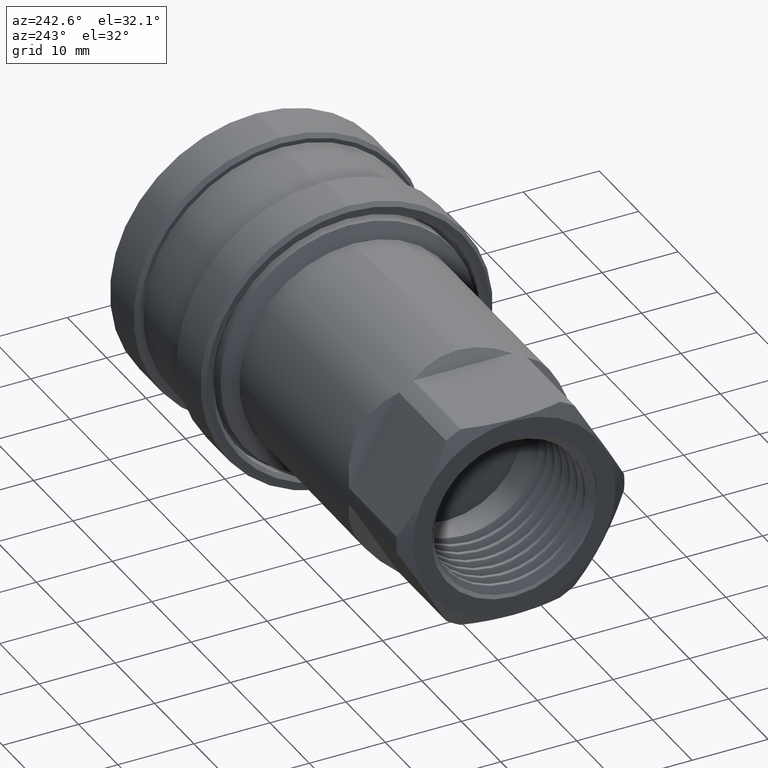
[diagram: clean part render]
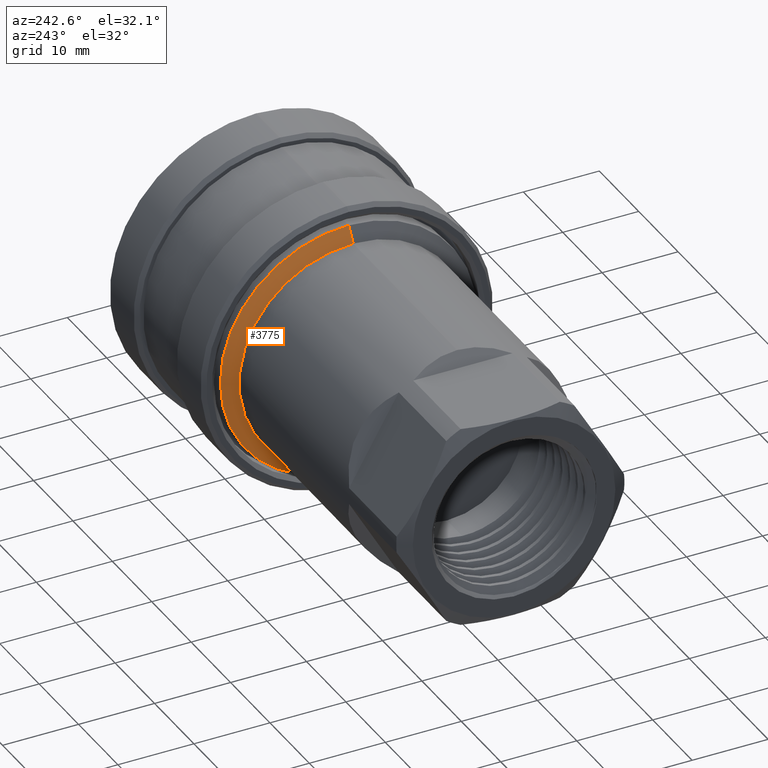
[diagram: same view with one face highlighted and labeled with its STEP entity id]
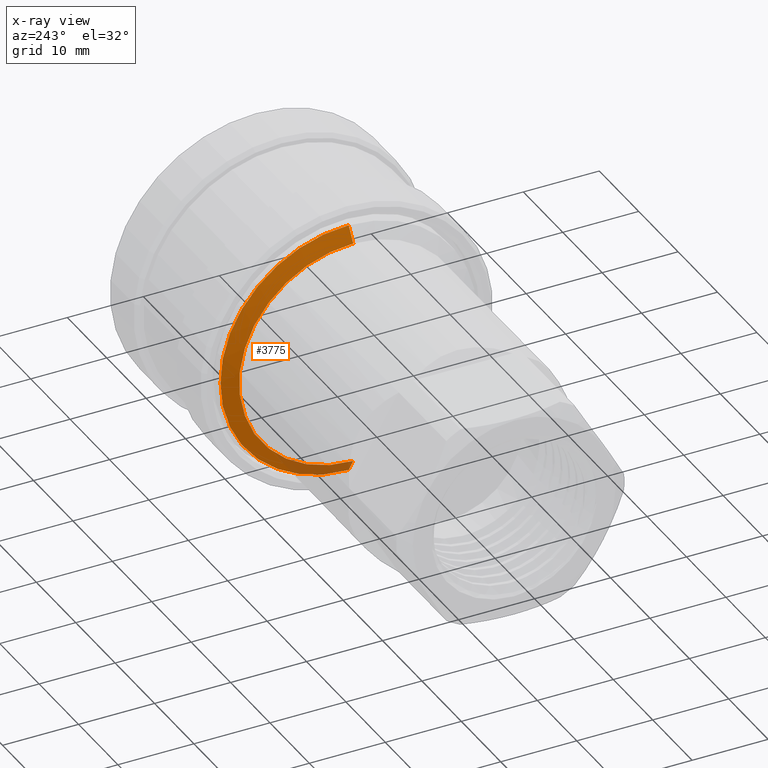
[diagram: x-ray of the same camera — body ghosted, the highlighted face saturated]
A machine part, auxiliary view. The second image highlights one B-rep face of the part: STEP entity #3775.
The next image is the same camera in x-ray: the body ghosted, the highlighted face saturated — about 11% of this face is hidden behind the body in this view.
In plain terms, the highlighted conical surface has half-angle 58.45 deg.
Its self-contained STEP definition (entity closure, byte-faithful):
#63 = DIRECTION ( 'NONE',  ( 0.000000000000000000, 0.000000000000000000, 1.000000000000000000 ) ) ;
#93 = EDGE_CURVE ( 'NONE', #1594, #4481, #3083, .T. ) ;
#112 = CARTESIAN_POINT ( 'NONE',  ( 201849.9763805929106, 201918.9340169888164, -16.87557297991081739 ) ) ;
#223 = CIRCLE ( 'NONE', #4432, 14.99469065859668504 ) ;
#337 = VECTOR ( 'NONE', #3525, 1000.000000000000114 ) ;
#361 = CARTESIAN_POINT ( 'NONE',  ( 201848.8215014559100, 201918.9340169888164, 14.99469065909630672 ) ) ;
#777 = VECTOR ( 'NONE', #4389, 1000.000000000000000 ) ;
#922 = ORIENTED_EDGE ( 'NONE', *, *, #2974, .T. ) ;
#956 = ORIENTED_EDGE ( 'NONE', *, *, #4944, .T. ) ;
#1091 = DIRECTION ( 'NONE',  ( 0.000000000000000000, 0.000000000000000000, -1.000000000000000000 ) ) ;
#1205 = DIRECTION ( 'NONE',  ( 0.000000000000000000, 0.000000000000000000, 1.000000000000000000 ) ) ;
#1594 = VERTEX_POINT ( 'NONE', #1759 ) ;
#1759 = CARTESIAN_POINT ( 'NONE',  ( 201848.8215014559100, 201918.9340169888164, -14.99469065809707580 ) ) ;
#2050 = CARTESIAN_POINT ( 'NONE',  ( 201849.9763805929106, 201918.9340169888164, 4.996178036773544553E-10 ) ) ;
#2157 = CARTESIAN_POINT ( 'NONE',  ( 201849.9763805929106, 201918.9340169888164, 16.87557298091005364 ) ) ;
#2230 = VERTEX_POINT ( 'NONE', #2157 ) ;
#2358 = EDGE_LOOP ( 'NONE', ( #4453, #956, #922, #2587 ) ) ;
#2587 = ORIENTED_EDGE ( 'NONE', *, *, #93, .F. ) ;
#2974 = EDGE_CURVE ( 'NONE', #2230, #4481, #4413, .T. ) ;
#3083 = LINE ( 'NONE', #112, #337 ) ;
#3417 = AXIS2_PLACEMENT_3D ( 'NONE', #2050, #5393, #1091 ) ;
#3420 = LINE ( 'NONE', #3876, #777 ) ;
#3525 = DIRECTION ( 'NONE',  ( 0.5232470412494306666, -1.035051254387629463E-15, -0.8521810452149921611 ) ) ;
#3688 = CONICAL_SURFACE ( 'NONE', #3417, 16.87557298041043552, 1.020139542058112747 ) ;
#3712 = FACE_OUTER_BOUND ( 'NONE', #2358, .T. ) ;
#3775 = ADVANCED_FACE ( 'NONE', ( #3712 ), #3688, .T. ) ;
#3876 = CARTESIAN_POINT ( 'NONE',  ( 201849.9763805929106, 201918.9340169888164, 16.87557298091005364 ) ) ;
#4172 = DIRECTION ( 'NONE',  ( -1.000000000000000000, 3.733948038163713664E-16, -1.743219798561495170E-15 ) ) ;
#4200 = VERTEX_POINT ( 'NONE', #361 ) ;
#4386 = CARTESIAN_POINT ( 'NONE',  ( 201849.9763805929106, 201918.9340169888164, 4.996178036773544553E-10 ) ) ;
#4389 = DIRECTION ( 'NONE',  ( 0.5232470412494319989, 7.486578806896286208E-16, 0.8521810452149913839 ) ) ;
#4413 = CIRCLE ( 'NONE', #4871, 16.87557298041043552 ) ;
#4432 = AXIS2_PLACEMENT_3D ( 'NONE', #5480, #4172, #1205 ) ;
#4453 = ORIENTED_EDGE ( 'NONE', *, *, #5630, .F. ) ;
#4481 = VERTEX_POINT ( 'NONE', #4763 ) ;
#4763 = CARTESIAN_POINT ( 'NONE',  ( 201849.9763805929106, 201918.9340169888164, -16.87557297991083161 ) ) ;
#4842 = DIRECTION ( 'NONE',  ( -1.000000000000000000, 3.733948038163713664E-16, -1.743219798561495170E-15 ) ) ;
#4871 = AXIS2_PLACEMENT_3D ( 'NONE', #4386, #4842, #63 ) ;
#4944 = EDGE_CURVE ( 'NONE', #4200, #2230, #3420, .T. ) ;
#5393 = DIRECTION ( 'NONE',  ( 1.000000000000000000, -3.733948038163713664E-16, 1.743219798561495170E-15 ) ) ;
#5480 = CARTESIAN_POINT ( 'NONE',  ( 201848.8215014559100, 201918.9340169888164, 4.996217833611348329E-10 ) ) ;
#5630 = EDGE_CURVE ( 'NONE', #4200, #1594, #223, .T. ) ;